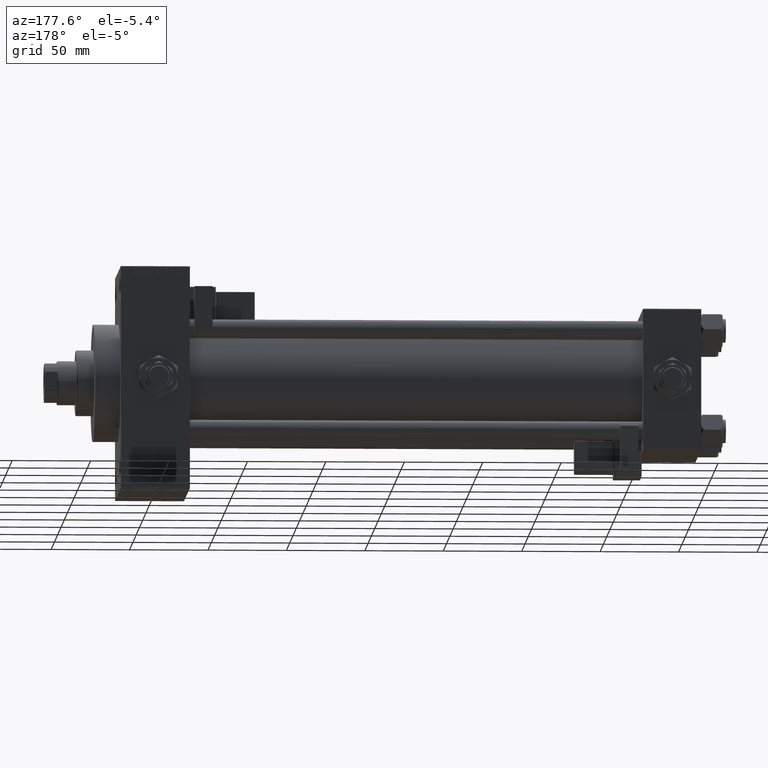
[diagram: clean part render]
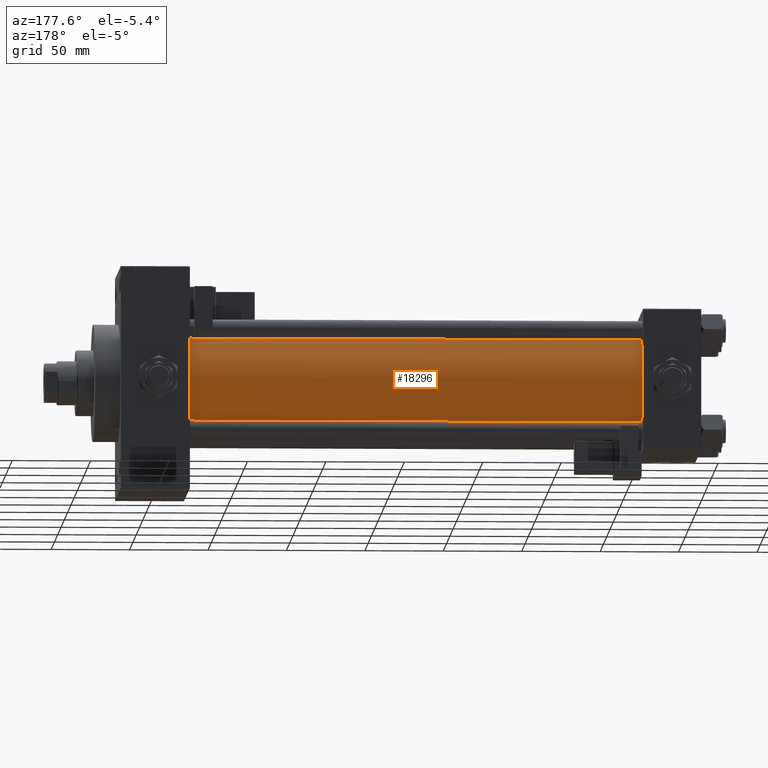
[diagram: same view with one face highlighted and labeled with its STEP entity id]
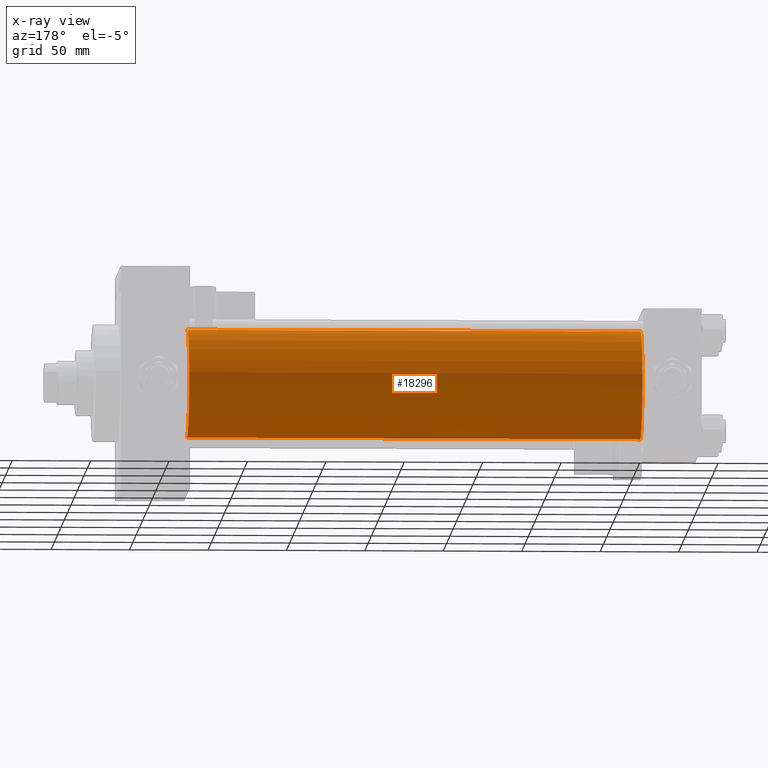
[diagram: x-ray of the same camera — body ghosted, the highlighted face saturated]
A machine part, auxiliary view. The second image highlights one B-rep face of the part: STEP entity #18296.
The next image is the same camera in x-ray: the body ghosted, the highlighted face saturated — about 0% of this face is hidden behind the body in this view.
In plain terms, the highlighted cylindrical surface (partial cylindrical patch) has radius 34.5 mm, axis along (-1, -0, -0).
Its self-contained STEP definition (entity closure, byte-faithful):
#2464 = CARTESIAN_POINT ( 'NONE',  ( 325.9999999999999432, 1.622946243093158675E-15, -34.50000000000000000 ) ) ;
#2529 = EDGE_CURVE ( 'NONE', #49406, #9878, #28312, .T. ) ;
#3156 = ORIENTED_EDGE ( 'NONE', *, *, #24828, .T. ) ;
#3475 = DIRECTION ( 'NONE',  ( 0.000000000000000000, 0.000000000000000000, 1.000000000000000000 ) ) ;
#4127 = ORIENTED_EDGE ( 'NONE', *, *, #19205, .F. ) ;
#5017 = CARTESIAN_POINT ( 'NONE',  ( 36.99999999999997868, -2.602085213965210642E-15, 34.50000000000000000 ) ) ;
#7507 = CARTESIAN_POINT ( 'NONE',  ( 325.9999999999999432, -2.602085213965210642E-15, 34.50000000000000000 ) ) ;
#7627 = FACE_OUTER_BOUND ( 'NONE', #22076, .T. ) ;
#9483 = LINE ( 'NONE', #2464, #28199 ) ;
#9878 = VERTEX_POINT ( 'NONE', #42081 ) ;
#9926 = DIRECTION ( 'NONE',  ( 0.000000000000000000, 0.000000000000000000, -1.000000000000000000 ) ) ;
#11039 = DIRECTION ( 'NONE',  ( 1.000000000000000000, -0.000000000000000000, 0.000000000000000000 ) ) ;
#11419 = ORIENTED_EDGE ( 'NONE', *, *, #30576, .T. ) ;
#13260 = CIRCLE ( 'NONE', #37337, 34.50000000000000000 ) ;
#18296 = ADVANCED_FACE ( 'NONE', ( #7627 ), #38627, .T. ) ;
#19205 = EDGE_CURVE ( 'NONE', #9878, #30697, #31476, .T. ) ;
#21917 = CARTESIAN_POINT ( 'NONE',  ( 325.9999999999999432, -2.602085213965210642E-15, 0.000000000000000000 ) ) ;
#22076 = EDGE_LOOP ( 'NONE', ( #41661, #3156, #11419, #4127 ) ) ;
#23401 = DIRECTION ( 'NONE',  ( -1.000000000000000000, -0.000000000000000000, -0.000000000000000000 ) ) ;
#24828 = EDGE_CURVE ( 'NONE', #49406, #42356, #9483, .T. ) ;
#25387 = DIRECTION ( 'NONE',  ( -1.000000000000000000, -0.000000000000000000, -0.000000000000000000 ) ) ;
#25635 = VECTOR ( 'NONE', #23401, 1000.000000000000000 ) ;
#25824 = AXIS2_PLACEMENT_3D ( 'NONE', #21917, #37017, #9926 ) ;
#26954 = DIRECTION ( 'NONE',  ( 0.000000000000000000, 0.000000000000000000, 1.000000000000000000 ) ) ;
#27196 = CARTESIAN_POINT ( 'NONE',  ( 325.9999999999999432, -2.602085213965210642E-15, 0.000000000000000000 ) ) ;
#28199 = VECTOR ( 'NONE', #25387, 1000.000000000000000 ) ;
#28312 = CIRCLE ( 'NONE', #25824, 34.50000000000000000 ) ;
#30576 = EDGE_CURVE ( 'NONE', #42356, #30697, #13260, .T. ) ;
#30697 = VERTEX_POINT ( 'NONE', #5017 ) ;
#31476 = LINE ( 'NONE', #7507, #25635 ) ;
#32251 = AXIS2_PLACEMENT_3D ( 'NONE', #27196, #39139, #3475 ) ;
#37017 = DIRECTION ( 'NONE',  ( 1.000000000000000000, 0.000000000000000000, 0.000000000000000000 ) ) ;
#37337 = AXIS2_PLACEMENT_3D ( 'NONE', #50629, #11039, #26954 ) ;
#37928 = CARTESIAN_POINT ( 'NONE',  ( 36.99999999999997868, 1.622946243093158675E-15, -34.50000000000000000 ) ) ;
#38627 = CYLINDRICAL_SURFACE ( 'NONE', #32251, 34.50000000000000000 ) ;
#39139 = DIRECTION ( 'NONE',  ( -1.000000000000000000, -0.000000000000000000, -0.000000000000000000 ) ) ;
#41661 = ORIENTED_EDGE ( 'NONE', *, *, #2529, .F. ) ;
#42081 = CARTESIAN_POINT ( 'NONE',  ( 325.9999999999999432, -2.602085213965210642E-15, 34.50000000000000000 ) ) ;
#42356 = VERTEX_POINT ( 'NONE', #37928 ) ;
#42824 = CARTESIAN_POINT ( 'NONE',  ( 325.9999999999999432, 1.622946243093158675E-15, -34.50000000000000000 ) ) ;
#49406 = VERTEX_POINT ( 'NONE', #42824 ) ;
#50629 = CARTESIAN_POINT ( 'NONE',  ( 36.99999999999997868, -2.602085213965210642E-15, 0.000000000000000000 ) ) ;